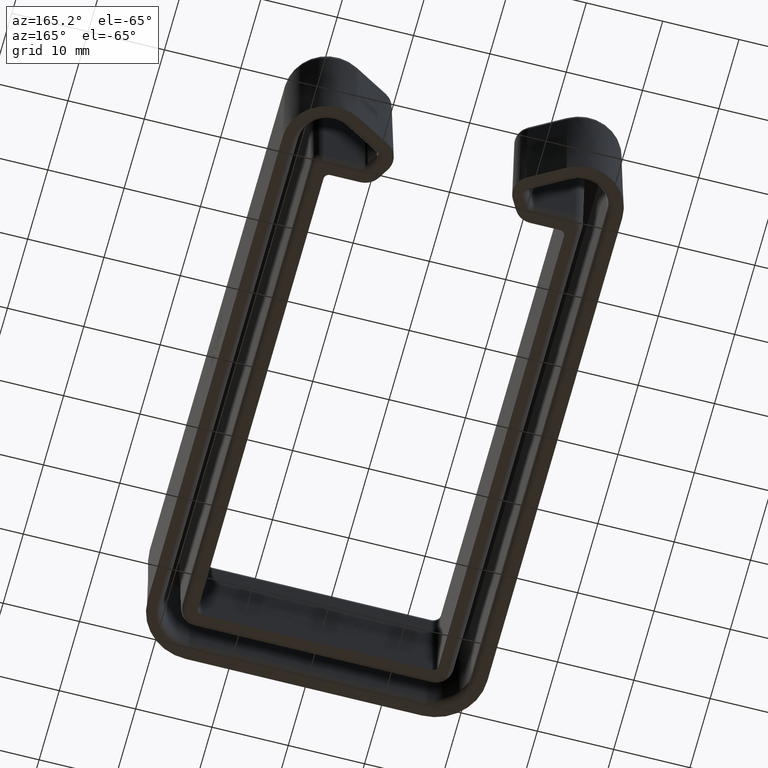
[diagram: clean part render]
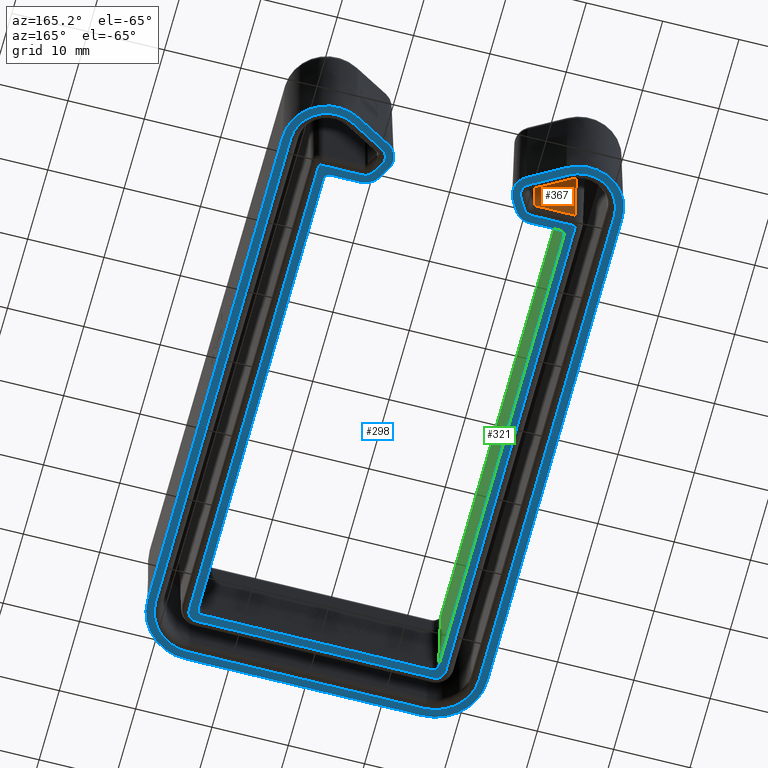
[diagram: same view with three faces highlighted in distinct colors, each labeled with its STEP entity id]
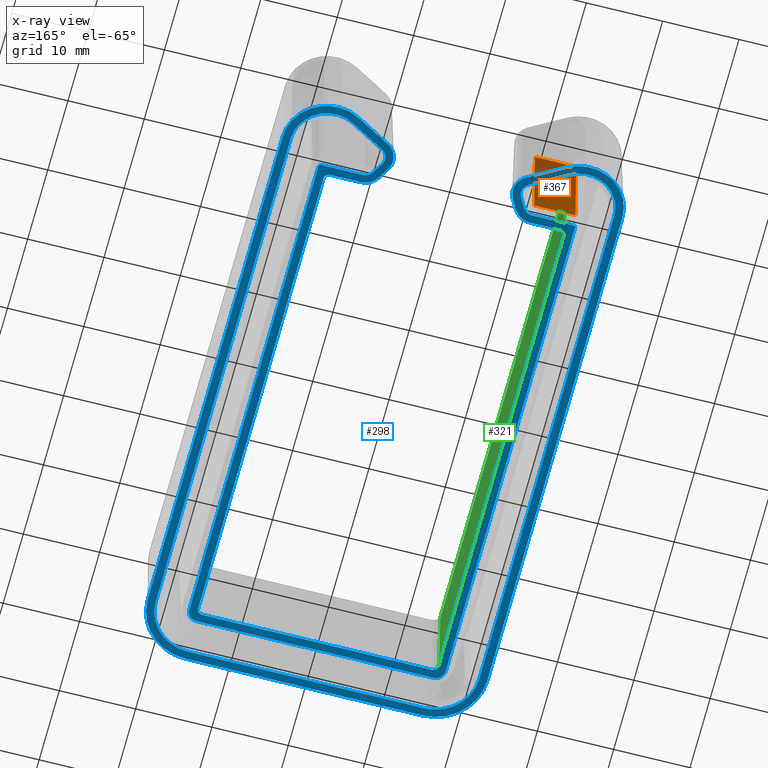
[diagram: x-ray of the same camera — body ghosted, the three highlighted faces saturated]
A machine part, auxiliary view with three faces highlighted in distinct colors.
The next image is the same camera in x-ray (body ghosted, the three faces saturated) — at least one of them is partly hidden behind the body in this view.
Their STEP definitions:

[orange] entity #367 — the highlighted planar face has unit normal (0, 0.9998, -0.0175).
#367=ADVANCED_FACE('',(#804),#805,.T.);
#804=FACE_OUTER_BOUND('',#1325,.T.);
#805=PLANE('',#1326);
#1325=EDGE_LOOP('',(#3355,#3356,#3357,#3358));
#1326=AXIS2_PLACEMENT_3D('',#3359,#3360,#3361);
#3355=ORIENTED_EDGE('',*,*,#4083,.F.);
#3356=ORIENTED_EDGE('',*,*,#3904,.T.);
#3357=ORIENTED_EDGE('',*,*,#4081,.T.);
#3358=ORIENTED_EDGE('',*,*,#4084,.T.);
#3359=CARTESIAN_POINT('',(15.4999999999977,70.1249255972025,15.0));
#3360=DIRECTION('',(0.0,0.999847695156391,-0.0174524064372836));
#3361=DIRECTION('',(0.0,0.0174524064372835,0.999847695156391));
#3904=EDGE_CURVE('',#4698,#4696,#4699,.F.);
#4081=EDGE_CURVE('',#4696,#4978,#4979,.T.);
#4083=EDGE_CURVE('',#4698,#4981,#4982,.T.);
#4084=EDGE_CURVE('',#4978,#4981,#4983,.F.);
#4696=VERTEX_POINT('',#6760);
#4698=VERTEX_POINT('',#6762);
#4699=LINE('',#6763,#6764);
#4978=VERTEX_POINT('',#7129);
#4979=LINE('',#7130,#7131);
#4981=VERTEX_POINT('',#7133);
#4982=LINE('',#7134,#7135);
#4983=LINE('',#7136,#7137);
#6760=CARTESIAN_POINT('',(-16.5500000000133,69.8802500553199,0.982547593562663));
#6762=CARTESIAN_POINT('',(-11.13377132404,69.8802500553199,0.982547593562717));
#6763=CARTESIAN_POINT('',(-16.5500000000133,69.8802500553199,0.982547593562716));
#6764=VECTOR('',#7502,1000.0);
#7129=CARTESIAN_POINT('',(-16.5500000000133,70.1249255972025,15.0));
#7130=CARTESIAN_POINT('',(-16.5500000000133,70.1249255972025,15.0));
#7131=VECTOR('',#7859,1000.0);
#7133=CARTESIAN_POINT('',(-11.13377132404,70.1249255972025,15.0));
#7134=CARTESIAN_POINT('',(-11.13377132404,70.1249255972025,15.0));
#7135=VECTOR('',#7863,1000.0);
#7136=CARTESIAN_POINT('',(15.4999999999977,70.1249255972025,15.0));
#7137=VECTOR('',#7864,1000.0);
#7502=DIRECTION('',(1.0,0.0,0.0));
#7859=DIRECTION('',(-8.07335977574516E-17,0.0174524064372835,0.999847695156391));
#7863=DIRECTION('',(0.0,0.0174524064372835,0.999847695156391));
#7864=DIRECTION('',(-1.0,0.0,0.0));

[blue] entity #298 — the highlighted planar face has unit normal (0, 0, -1).
#298=ADVANCED_FACE('',(#665,#666),#667,.T.);
#665=FACE_BOUND('',#1186,.T.);
#666=FACE_OUTER_BOUND('',#1187,.T.);
#667=PLANE('',#1188);
#1186=EDGE_LOOP('',(#2802,#2803,#2804,#2805,#2806,#2807,#2808,#2809,#2810,#2811,#2812,#2813,#2814,#2815,#2816,#2817,#2818,#2819,#2820,#2821,#2822,#2823,#2824,#2825,#2826,#2827));
#1187=EDGE_LOOP('',(#2828,#2829,#2830,#2831,#2832,#2833,#2834,#2835,#2836,#2837,#2838,#2839,#2840,#2841,#2842,#2843,#2844,#2845,#2846,#2847,#2848,#2849,#2850,#2851,#2852,#2853));
#1188=AXIS2_PLACEMENT_3D('',#2854,#2855,#2856);
#2802=ORIENTED_EDGE('',*,*,#3910,.T.);
#2803=ORIENTED_EDGE('',*,*,#3911,.T.);
#2804=ORIENTED_EDGE('',*,*,#3912,.T.);
#2805=ORIENTED_EDGE('',*,*,#3913,.T.);
#2806=ORIENTED_EDGE('',*,*,#3914,.T.);
#2807=ORIENTED_EDGE('',*,*,#3915,.T.);
#2808=ORIENTED_EDGE('',*,*,#3916,.T.);
#2809=ORIENTED_EDGE('',*,*,#3876,.T.);
#2810=ORIENTED_EDGE('',*,*,#3917,.T.);
#2811=ORIENTED_EDGE('',*,*,#3918,.T.);
#2812=ORIENTED_EDGE('',*,*,#3900,.T.);
#2813=ORIENTED_EDGE('',*,*,#3919,.T.);
#2814=ORIENTED_EDGE('',*,*,#3920,.T.);
#2815=ORIENTED_EDGE('',*,*,#3921,.T.);
#2816=ORIENTED_EDGE('',*,*,#3922,.T.);
#2817=ORIENTED_EDGE('',*,*,#3923,.T.);
#2818=ORIENTED_EDGE('',*,*,#3924,.T.);
#2819=ORIENTED_EDGE('',*,*,#3925,.T.);
#2820=ORIENTED_EDGE('',*,*,#3909,.T.);
#2821=ORIENTED_EDGE('',*,*,#3906,.T.);
#2822=ORIENTED_EDGE('',*,*,#3926,.T.);
#2823=ORIENTED_EDGE('',*,*,#3927,.T.);
#2824=ORIENTED_EDGE('',*,*,#3928,.T.);
#2825=ORIENTED_EDGE('',*,*,#3882,.T.);
#2826=ORIENTED_EDGE('',*,*,#3929,.T.);
#2827=ORIENTED_EDGE('',*,*,#3930,.T.);
#2828=ORIENTED_EDGE('',*,*,#3931,.F.);
#2829=ORIENTED_EDGE('',*,*,#3932,.F.);
#2830=ORIENTED_EDGE('',*,*,#3933,.F.);
#2831=ORIENTED_EDGE('',*,*,#3934,.F.);
#2832=ORIENTED_EDGE('',*,*,#3935,.F.);
#2833=ORIENTED_EDGE('',*,*,#3936,.F.);
#2834=ORIENTED_EDGE('',*,*,#3896,.F.);
#2835=ORIENTED_EDGE('',*,*,#3937,.F.);
#2836=ORIENTED_EDGE('',*,*,#3938,.F.);
#2837=ORIENTED_EDGE('',*,*,#3939,.F.);
#2838=ORIENTED_EDGE('',*,*,#3940,.F.);
#2839=ORIENTED_EDGE('',*,*,#3941,.F.);
#2840=ORIENTED_EDGE('',*,*,#3942,.F.);
#2841=ORIENTED_EDGE('',*,*,#3943,.F.);
#2842=ORIENTED_EDGE('',*,*,#3944,.F.);
#2843=ORIENTED_EDGE('',*,*,#3945,.F.);
#2844=ORIENTED_EDGE('',*,*,#3946,.F.);
#2845=ORIENTED_EDGE('',*,*,#3947,.F.);
#2846=ORIENTED_EDGE('',*,*,#3894,.F.);
#2847=ORIENTED_EDGE('',*,*,#3948,.F.);
#2848=ORIENTED_EDGE('',*,*,#3949,.F.);
#2849=ORIENTED_EDGE('',*,*,#3950,.F.);
#2850=ORIENTED_EDGE('',*,*,#3951,.F.);
#2851=ORIENTED_EDGE('',*,*,#3952,.F.);
#2852=ORIENTED_EDGE('',*,*,#3953,.F.);
#2853=ORIENTED_EDGE('',*,*,#3954,.F.);
#2854=CARTESIAN_POINT('',(15.049999999996,4.95000000001253,0.0));
#2855=DIRECTION('',(0.0,0.0,-1.0));
#2856=DIRECTION('',(8.32667268468864E-13,-1.0,0.0));
#3876=EDGE_CURVE('',#4645,#4643,#4646,.F.);
#3882=EDGE_CURVE('',#4650,#4654,#4656,.F.);
#3894=EDGE_CURVE('',#4677,#4673,#4679,.F.);
#3896=EDGE_CURVE('',#4680,#4682,#4683,.F.);
#3900=EDGE_CURVE('',#4690,#4688,#4691,.F.);
#3906=EDGE_CURVE('',#4695,#4700,#4702,.F.);
#3909=EDGE_CURVE('',#4703,#4695,#4707,.T.);
#3910=EDGE_CURVE('',#4708,#4709,#4710,.F.);
#3911=EDGE_CURVE('',#4709,#4711,#4712,.F.);
#3912=EDGE_CURVE('',#4711,#4713,#4714,.F.);
#3913=EDGE_CURVE('',#4713,#4715,#4716,.F.);
#3914=EDGE_CURVE('',#4715,#4717,#4718,.F.);
#3915=EDGE_CURVE('',#4717,#4719,#4720,.F.);
#3916=EDGE_CURVE('',#4719,#4645,#4721,.F.);
#3917=EDGE_CURVE('',#4643,#4722,#4723,.F.);
#3918=EDGE_CURVE('',#4722,#4690,#4724,.F.);
#3919=EDGE_CURVE('',#4688,#4725,#4726,.F.);
#3920=EDGE_CURVE('',#4725,#4727,#4728,.T.);
#3921=EDGE_CURVE('',#4727,#4729,#4730,.F.);
#3922=EDGE_CURVE('',#4729,#4731,#4732,.T.);
#3923=EDGE_CURVE('',#4731,#4733,#4734,.F.);
#3924=EDGE_CURVE('',#4733,#4735,#4736,.T.);
#3925=EDGE_CURVE('',#4735,#4703,#4737,.F.);
#3926=EDGE_CURVE('',#4700,#4738,#4739,.F.);
#3927=EDGE_CURVE('',#4738,#4740,#4741,.F.);
#3928=EDGE_CURVE('',#4740,#4650,#4742,.F.);
#3929=EDGE_CURVE('',#4654,#4743,#4744,.F.);
#3930=EDGE_CURVE('',#4743,#4708,#4745,.F.);
#3931=EDGE_CURVE('',#4746,#4747,#4748,.T.);
#3932=EDGE_CURVE('',#4749,#4746,#4750,.F.);
#3933=EDGE_CURVE('',#4751,#4749,#4752,.T.);
#3934=EDGE_CURVE('',#4753,#4751,#4754,.F.);
#3935=EDGE_CURVE('',#4755,#4753,#4756,.F.);
#3936=EDGE_CURVE('',#4682,#4755,#4757,.F.);
#3937=EDGE_CURVE('',#4758,#4680,#4759,.F.);
#3938=EDGE_CURVE('',#4760,#4758,#4761,.F.);
#3939=EDGE_CURVE('',#4762,#4760,#4763,.F.);
#3940=EDGE_CURVE('',#4764,#4762,#4765,.F.);
#3941=EDGE_CURVE('',#4766,#4764,#4767,.F.);
#3942=EDGE_CURVE('',#4768,#4766,#4769,.F.);
#3943=EDGE_CURVE('',#4770,#4768,#4771,.F.);
#3944=EDGE_CURVE('',#4772,#4770,#4773,.F.);
#3945=EDGE_CURVE('',#4774,#4772,#4775,.F.);
#3946=EDGE_CURVE('',#4776,#4774,#4777,.F.);
#3947=EDGE_CURVE('',#4673,#4776,#4778,.F.);
#3948=EDGE_CURVE('',#4779,#4677,#4780,.F.);
#3949=EDGE_CURVE('',#4781,#4779,#4782,.F.);
#3950=EDGE_CURVE('',#4783,#4781,#4784,.F.);
#3951=EDGE_CURVE('',#4785,#4783,#4786,.T.);
#3952=EDGE_CURVE('',#4787,#4785,#4788,.F.);
#3953=EDGE_CURVE('',#4789,#4787,#4790,.T.);
#3954=EDGE_CURVE('',#4747,#4789,#4791,.F.);
#4643=VERTEX_POINT('',#6703);
#4645=VERTEX_POINT('',#6705);
#4646=CIRCLE('',#6706,1.44452323703896);
#4650=VERTEX_POINT('',#6710);
#4654=VERTEX_POINT('',#6714);
#4656=CIRCLE('',#6716,1.44452323703895);
#4673=VERTEX_POINT('',#6733);
#4677=VERTEX_POINT('',#6738);
#4679=CIRCLE('',#6741,2.49673610377969);
#4680=VERTEX_POINT('',#6742);
#4682=VERTEX_POINT('',#6745);
#4683=CIRCLE('',#6746,2.49673610377951);
#4688=VERTEX_POINT('',#6752);
#4690=VERTEX_POINT('',#6754);
#4691=CIRCLE('',#6755,1.44452323703895);
#4695=VERTEX_POINT('',#6759);
#4700=VERTEX_POINT('',#6765);
#4702=LINE('',#6767,#6768);
#4703=VERTEX_POINT('',#6769);
#4707=CIRCLE('',#6773,0.255476762961047);
#4708=VERTEX_POINT('',#6774);
#4709=VERTEX_POINT('',#6775);
#4710=LINE('',#6776,#6777);
#4711=VERTEX_POINT('',#6778);
#4712=CIRCLE('',#6779,5.69452323703779);
#4713=VERTEX_POINT('',#6780);
#4714=LINE('',#6781,#6782);
#4715=VERTEX_POINT('',#6783);
#4716=CIRCLE('',#6784,5.69452323703678);
#4717=VERTEX_POINT('',#6785);
#4718=LINE('',#6786,#6787);
#4719=VERTEX_POINT('',#6788);
#4720=CIRCLE('',#6789,4.6945232370389);
#4721=LINE('',#6790,#6791);
#4722=VERTEX_POINT('',#6792);
#4723=CIRCLE('',#6793,1.44452323703896);
#4724=LINE('',#6794,#6795);
#4725=VERTEX_POINT('',#6796);
#4726=LINE('',#6797,#6798);
#4727=VERTEX_POINT('',#6799);
#4728=CIRCLE('',#6800,0.255476762961047);
#4729=VERTEX_POINT('',#6801);
#4730=LINE('',#6802,#6803);
#4731=VERTEX_POINT('',#6804);
#4732=CIRCLE('',#6805,1.30547676296179);
#4733=VERTEX_POINT('',#6806);
#4734=LINE('',#6807,#6808);
#4735=VERTEX_POINT('',#6809);
#4736=CIRCLE('',#6810,1.30547676296213);
#4737=LINE('',#6811,#6812);
#4738=VERTEX_POINT('',#6813);
#4739=CIRCLE('',#6814,1.44452323703896);
#4740=VERTEX_POINT('',#6815);
#4741=LINE('',#6816,#6817);
#4742=CIRCLE('',#6818,1.44452323703895);
#4743=VERTEX_POINT('',#6819);
#4744=LINE('',#6820,#6821);
#4745=CIRCLE('',#6822,4.69452323703907);
#4746=VERTEX_POINT('',#6823);
#4747=VERTEX_POINT('',#6824);
#4748=CIRCLE('',#6825,0.703263896220302);
#4749=VERTEX_POINT('',#6826);
#4750=LINE('',#6827,#6828);
#4751=VERTEX_POINT('',#6829);
#4752=CIRCLE('',#6830,0.703263896220302);
#4753=VERTEX_POINT('',#6831);
#4754=LINE('',#6832,#6833);
#4755=VERTEX_POINT('',#6834);
#4756=CIRCLE('',#6835,2.49673610377975);
#4757=LINE('',#6836,#6837);
#4758=VERTEX_POINT('',#6838);
#4759=CIRCLE('',#6839,2.49673610377951);
#4760=VERTEX_POINT('',#6840);
#4761=LINE('',#6841,#6842);
#4762=VERTEX_POINT('',#6843);
#4763=CIRCLE('',#6844,5.74673610377893);
#4764=VERTEX_POINT('',#6845);
#4765=LINE('',#6846,#6847);
#4766=VERTEX_POINT('',#6848);
#4767=CIRCLE('',#6849,6.74673610378365);
#4768=VERTEX_POINT('',#6850);
#4769=LINE('',#6851,#6852);
#4770=VERTEX_POINT('',#6853);
#4771=CIRCLE('',#6854,6.74673610378238);
#4772=VERTEX_POINT('',#6855);
#4773=LINE('',#6856,#6857);
#4774=VERTEX_POINT('',#6858);
#4775=CIRCLE('',#6859,5.74673610378009);
#4776=VERTEX_POINT('',#6860);
#4777=LINE('',#6861,#6862);
#4778=CIRCLE('',#6863,2.49673610377969);
#4779=VERTEX_POINT('',#6864);
#4780=LINE('',#6865,#6866);
#4781=VERTEX_POINT('',#6867);
#4782=CIRCLE('',#6868,2.49673610377983);
#4783=VERTEX_POINT('',#6869);
#4784=LINE('',#6870,#6871);
#4785=VERTEX_POINT('',#6872);
#4786=CIRCLE('',#6873,0.703263896220302);
#4787=VERTEX_POINT('',#6874);
#4788=LINE('',#6875,#6876);
#4789=VERTEX_POINT('',#6877);
#4790=CIRCLE('',#6878,0.703263896220301);
#4791=LINE('',#6879,#6880);
#6703=CARTESIAN_POINT('',(8.89698311389346,71.697168783658,0.0));
#6705=CARTESIAN_POINT('',(9.61924473241147,72.9481626032898,0.0));
#6706=AXIS2_PLACEMENT_3D('',#7426,#7427,#7428);
#6710=CARTESIAN_POINT('',(-8.89698311392089,71.6971687836364,0.0));
#6714=CARTESIAN_POINT('',(-9.6192447324412,72.9481626032696,0.0));
#6716=AXIS2_PLACEMENT_3D('',#7444,#7445,#7446);
#6733=CARTESIAN_POINT('',(-7.84477024718014,71.6971687836365,0.0));
#6738=CARTESIAN_POINT('',(-8.1792694585401,70.4488007317479,0.0));
#6741=AXIS2_PLACEMENT_3D('',#7476,#7477,#7478);
#6742=CARTESIAN_POINT('',(7.84477024715291,71.697168783658,0.0));
#6745=CARTESIAN_POINT('',(8.17926945851487,70.448800731766,0.0));
#6746=AXIS2_PLACEMENT_3D('',#7480,#7481,#7482);
#6752=CARTESIAN_POINT('',(11.133771324028,68.8804023601635,0.0));
#6754=CARTESIAN_POINT('',(9.88277750439602,69.6026639786818,0.0));
#6755=AXIS2_PLACEMENT_3D('',#7490,#7491,#7492);
#6759=CARTESIAN_POINT('',(-16.5500000000133,68.8804023601635,0.0));
#6765=CARTESIAN_POINT('',(-11.13377132404,68.8804023601635,0.0));
#6767=CARTESIAN_POINT('',(-11.13377132404,68.8804023601635,0.0));
#6768=VECTOR('',#7506,1000.0);
#6769=CARTESIAN_POINT('',(-16.8054767629744,68.6249255972024,0.0));
#6773=AXIS2_PLACEMENT_3D('',#7513,#7514,#7515);
#6774=CARTESIAN_POINT('',(-21.1945232370525,71.4999999999826,0.0));
#6775=CARTESIAN_POINT('',(-21.1945232370432,4.49999999998529,0.0));
#6776=CARTESIAN_POINT('',(-21.1945232370432,4.49999999998529,0.0));
#6777=VECTOR('',#7516,1000.0);
#6778=CARTESIAN_POINT('',(-15.4999999999994,-1.19452323705186,0.0));
#6779=AXIS2_PLACEMENT_3D('',#7517,#7518,#7519);
#6780=CARTESIAN_POINT('',(15.5000000000027,-1.19452323702605,0.0));
#6781=CARTESIAN_POINT('',(15.5000000000027,-1.19452323702605,0.0));
#6782=VECTOR('',#7520,1000.0);
#6783=CARTESIAN_POINT('',(21.1945232370348,4.50000000001365,0.0));
#6784=AXIS2_PLACEMENT_3D('',#7521,#7522,#7523);
#6785=CARTESIAN_POINT('',(21.1945232370255,71.5000000000178,0.0));
#6786=CARTESIAN_POINT('',(21.1945232370255,71.5000000000178,0.0));
#6787=VECTOR('',#7524,1000.0);
#6788=CARTESIAN_POINT('',(14.1527383814625,75.5655763819464,0.0));
#6789=AXIS2_PLACEMENT_3D('',#7525,#7526,#7527);
#6790=CARTESIAN_POINT('',(9.61924473241148,72.9481626032898,0.0));
#6791=VECTOR('',#7528,1000.0);
#6792=CARTESIAN_POINT('',(9.09051253130051,70.9749071651372,0.0));
#6793=AXIS2_PLACEMENT_3D('',#7529,#7530,#7531);
#6794=CARTESIAN_POINT('',(9.88277750439606,69.6026639786817,0.0));
#6795=VECTOR('',#7532,1000.0);
#6796=CARTESIAN_POINT('',(16.5499999999876,68.8804023601635,0.0));
#6797=CARTESIAN_POINT('',(16.5499999999876,68.8804023601635,0.0));
#6798=VECTOR('',#7533,1000.0);
#6799=CARTESIAN_POINT('',(16.8054767629486,68.6249255972025,0.0));
#6800=AXIS2_PLACEMENT_3D('',#7534,#7535,#7536);
#6801=CARTESIAN_POINT('',(16.8054767629571,4.50000000001383,0.0));
#6802=CARTESIAN_POINT('',(16.8054767629571,4.50000000001382,0.0));
#6803=VECTOR('',#7537,1000.0);
#6804=CARTESIAN_POINT('',(15.4999999999967,3.19452323705187,0.0));
#6805=AXIS2_PLACEMENT_3D('',#7538,#7539,#7540);
#6806=CARTESIAN_POINT('',(-15.5000000000018,3.19452323702605,0.0));
#6807=CARTESIAN_POINT('',(-15.5000000000018,3.19452323702605,0.0));
#6808=VECTOR('',#7541,1000.0);
#6809=CARTESIAN_POINT('',(-16.805476762965,4.4999999999869,0.0));
#6810=AXIS2_PLACEMENT_3D('',#7542,#7543,#7544);
#6811=CARTESIAN_POINT('',(-16.8054767629744,68.6249255972024,0.0));
#6812=VECTOR('',#7545,1000.0);
#6813=CARTESIAN_POINT('',(-9.88277750440695,69.6026639786837,0.0));
#6814=AXIS2_PLACEMENT_3D('',#7546,#7547,#7548);
#6815=CARTESIAN_POINT('',(-9.09051253132671,70.9749071651177,0.0));
#6816=CARTESIAN_POINT('',(-9.09051253132673,70.9749071651177,0.0));
#6817=VECTOR('',#7549,1000.0);
#6818=AXIS2_PLACEMENT_3D('',#7550,#7551,#7552);
#6819=CARTESIAN_POINT('',(-14.1527383814966,75.5655763819171,0.0));
#6820=CARTESIAN_POINT('',(-14.1527383814966,75.5655763819171,0.0));
#6821=VECTOR('',#7553,1000.0);
#6822=AXIS2_PLACEMENT_3D('',#7554,#7555,#7556);
#6823=CARTESIAN_POINT('',(15.7532638962163,4.95000000001262,0.0));
#6824=CARTESIAN_POINT('',(15.0499999999966,4.24673610379222,0.0));
#6825=AXIS2_PLACEMENT_3D('',#7557,#7558,#7559);
#6826=CARTESIAN_POINT('',(15.753263896208,67.1249255972026,0.0));
#6827=CARTESIAN_POINT('',(15.7532638962164,3.95000000001263,0.0));
#6828=VECTOR('',#7560,1000.0);
#6829=CARTESIAN_POINT('',(15.0499999999877,67.8281894934228,0.0));
#6830=AXIS2_PLACEMENT_3D('',#7561,#7562,#7563);
#6831=CARTESIAN_POINT('',(11.133771324028,67.8281894934228,0.0));
#6832=CARTESIAN_POINT('',(15.0499999999968,67.8281894934228,0.0));
#6833=VECTOR('',#7564,1000.0);
#6834=CARTESIAN_POINT('',(8.97153443161027,69.0765575453105,0.0));
#6835=AXIS2_PLACEMENT_3D('',#7565,#7566,#7567);
#6836=CARTESIAN_POINT('',(38.6917774713742,17.5995865872658,0.0));
#6837=VECTOR('',#7568,1000.0);
#6838=CARTESIAN_POINT('',(9.09313829904002,73.8594056760756,0.0));
#6839=AXIS2_PLACEMENT_3D('',#7569,#7570,#7571);
#6840=CARTESIAN_POINT('',(13.6266319480914,76.4768194547315,0.0));
#6841=CARTESIAN_POINT('',(-16.710876064761,58.9614510369215,0.0));
#6842=VECTOR('',#7572,1000.0);
#6843=CARTESIAN_POINT('',(22.2467361037662,71.500000000018,0.0));
#6844=AXIS2_PLACEMENT_3D('',#7573,#7574,#7575);
#6845=CARTESIAN_POINT('',(22.2467361037816,4.5000000000138,0.0));
#6846=CARTESIAN_POINT('',(22.2467361037756,3.95000000001354,0.0));
#6847=VECTOR('',#7576,1000.0);
#6848=CARTESIAN_POINT('',(15.5000000000035,-2.24673610376679,0.0));
#6849=AXIS2_PLACEMENT_3D('',#7577,#7578,#7579);
#6850=CARTESIAN_POINT('',(-15.4999999999985,-2.24673610379629,0.0));
#6851=CARTESIAN_POINT('',(15.0500000000019,-2.24673610376716,0.0));
#6852=VECTOR('',#7580,1000.0);
#6853=CARTESIAN_POINT('',(-22.2467361037839,4.49999999998516,0.0));
#6854=AXIS2_PLACEMENT_3D('',#7581,#7582,#7583);
#6855=CARTESIAN_POINT('',(-22.2467361037935,71.4999999999825,0.0));
#6856=CARTESIAN_POINT('',(-22.2467361037839,3.95000000000734,0.0));
#6857=VECTOR('',#7584,1000.0);
#6858=CARTESIAN_POINT('',(-13.6266319481268,76.4768194547039,0.0));
#6859=AXIS2_PLACEMENT_3D('',#7585,#7586,#7587);
#6860=CARTESIAN_POINT('',(-9.09313829907143,73.8594056760563,0.0));
#6861=CARTESIAN_POINT('',(39.2858760646834,45.9277687100564,0.0));
#6862=VECTOR('',#7588,1000.0);
#6863=AXIS2_PLACEMENT_3D('',#7589,#7590,#7591);
#6864=CARTESIAN_POINT('',(-8.97153443162019,69.0765575453139,0.0));
#6865=CARTESIAN_POINT('',(-31.1667774713392,30.6332689141292,0.0));
#6866=VECTOR('',#7592,1000.0);
#6867=CARTESIAN_POINT('',(-11.13377132404,67.8281894934228,0.0));
#6868=AXIS2_PLACEMENT_3D('',#7593,#7594,#7595);
#6869=CARTESIAN_POINT('',(-15.0500000000131,67.8281894934228,0.0));
#6870=CARTESIAN_POINT('',(15.0499999999968,67.8281894934228,0.0));
#6871=VECTOR('',#7596,1000.0);
#6872=CARTESIAN_POINT('',(-15.7532638962335,67.1249255972024,0.0));
#6873=AXIS2_PLACEMENT_3D('',#7597,#7598,#7599);
#6874=CARTESIAN_POINT('',(-15.7532638962244,4.94999999998737,0.0));
#6875=CARTESIAN_POINT('',(-15.7532638962243,3.95000000000804,0.0));
#6876=VECTOR('',#7600,1000.0);
#6877=CARTESIAN_POINT('',(-15.0500000000035,4.24673610376717,0.0));
#6878=AXIS2_PLACEMENT_3D('',#7601,#7602,#7603);
#6879=CARTESIAN_POINT('',(15.0499999999966,4.24673610379223,0.0));
#6880=VECTOR('',#7604,1000.0);
#7426=CARTESIAN_POINT('',(10.3415063509324,71.697168783658,0.0));
#7427=DIRECTION('',(0.0,0.0,-1.0));
#7428=DIRECTION('',(-1.0,0.0,0.0));
#7444=CARTESIAN_POINT('',(-10.3415063509598,71.6971687836364,0.0));
#7445=DIRECTION('',(0.0,0.0,-1.0));
#7446=DIRECTION('',(-1.0,0.0,0.0));
#7476=CARTESIAN_POINT('',(-10.3415063509598,71.6971687836365,0.0));
#7477=DIRECTION('',(0.0,0.0,-1.0));
#7478=DIRECTION('',(-1.0,0.0,0.0));
#7480=CARTESIAN_POINT('',(10.3415063509324,71.697168783658,0.0));
#7481=DIRECTION('',(0.0,0.0,-1.0));
#7482=DIRECTION('',(-1.0,0.0,0.0));
#7490=CARTESIAN_POINT('',(11.133771324028,70.3249255972025,0.0));
#7491=DIRECTION('',(0.0,0.0,-1.0));
#7492=DIRECTION('',(-1.0,0.0,0.0));
#7506=DIRECTION('',(-1.0,0.0,0.0));
#7513=CARTESIAN_POINT('',(-16.5500000000133,68.6249255972025,0.0));
#7514=DIRECTION('',(0.0,0.0,-1.0));
#7515=DIRECTION('',(-1.0,0.0,0.0));
#7516=DIRECTION('',(-1.39192140400773E-13,1.0,0.0));
#7517=CARTESIAN_POINT('',(-15.5000000000041,4.4999999999861,0.0));
#7518=DIRECTION('',(0.0,0.0,-1.0));
#7519=DIRECTION('',(-1.0,0.0,0.0));
#7520=DIRECTION('',(-1.0,-8.32667268468864E-13,0.0));
#7521=CARTESIAN_POINT('',(15.499999999998,4.50000000001285,0.0));
#7522=DIRECTION('',(0.0,0.0,-1.0));
#7523=DIRECTION('',(-1.0,0.0,0.0));
#7524=DIRECTION('',(1.39192140400759E-13,-1.0,0.0));
#7525=CARTESIAN_POINT('',(16.4999999999868,71.5000000000171,0.0));
#7526=DIRECTION('',(0.0,0.0,-1.0));
#7527=DIRECTION('',(-1.0,0.0,0.0));
#7528=DIRECTION('',(0.866025403783849,0.500000000001021,0.0));
#7529=CARTESIAN_POINT('',(10.3415063509324,71.697168783658,0.0));
#7530=DIRECTION('',(0.0,0.0,-1.0));
#7531=DIRECTION('',(-1.0,0.0,0.0));
#7532=DIRECTION('',(-0.500000000000888,0.866025403783926,0.0));
#7533=DIRECTION('',(-1.0,0.0,0.0));
#7534=CARTESIAN_POINT('',(16.5499999999876,68.6249255972025,0.0));
#7535=DIRECTION('',(0.0,0.0,-1.0));
#7536=DIRECTION('',(-1.0,0.0,0.0));
#7537=DIRECTION('',(-1.32563943238818E-13,1.0,0.0));
#7538=CARTESIAN_POINT('',(15.4999999999957,4.50000000001366,0.0));
#7539=DIRECTION('',(0.0,0.0,-1.0));
#7540=DIRECTION('',(-1.0,0.0,0.0));
#7541=DIRECTION('',(1.0,8.32667268468864E-13,0.0));
#7542=CARTESIAN_POINT('',(-15.500000000003,4.49999999998709,0.0));
#7543=DIRECTION('',(0.0,0.0,-1.0));
#7544=DIRECTION('',(-1.0,0.0,0.0));
#7545=DIRECTION('',(1.45820337562714E-13,-1.0,0.0));
#7546=CARTESIAN_POINT('',(-11.13377132404,70.3249255972025,0.0));
#7547=DIRECTION('',(0.0,0.0,-1.0));
#7548=DIRECTION('',(-1.0,0.0,0.0));
#7549=DIRECTION('',(-0.499999999999492,-0.866025403784732,0.0));
#7550=CARTESIAN_POINT('',(-10.3415063509598,71.6971687836364,0.0));
#7551=DIRECTION('',(0.0,0.0,-1.0));
#7552=DIRECTION('',(-1.0,0.0,0.0));
#7553=DIRECTION('',(0.86602540378477,-0.499999999999426,0.0));
#7554=CARTESIAN_POINT('',(-16.5000000000135,71.4999999999833,0.0));
#7555=DIRECTION('',(0.0,0.0,-1.0));
#7556=DIRECTION('',(-1.0,0.0,0.0));
#7557=CARTESIAN_POINT('',(15.049999999996,4.95000000001253,0.0));
#7558=DIRECTION('',(0.0,0.0,-1.0));
#7559=DIRECTION('',(-1.0,0.0,0.0));
#7560=DIRECTION('',(-1.32563943238818E-13,1.0,0.0));
#7561=CARTESIAN_POINT('',(15.0499999999877,67.1249255972025,0.0));
#7562=DIRECTION('',(0.0,0.0,-1.0));
#7563=DIRECTION('',(-1.0,0.0,0.0));
#7564=DIRECTION('',(-1.0,1.00974195868289E-28,0.0));
#7565=CARTESIAN_POINT('',(11.133771324028,70.3249255972025,0.0));
#7566=DIRECTION('',(0.0,0.0,-1.0));
#7567=DIRECTION('',(-1.0,0.0,0.0));
#7568=DIRECTION('',(-0.500000000000887,0.866025403783927,0.0));
#7569=CARTESIAN_POINT('',(10.3415063509324,71.697168783658,0.0));
#7570=DIRECTION('',(0.0,0.0,-1.0));
#7571=DIRECTION('',(-1.0,0.0,0.0));
#7572=DIRECTION('',(0.866025403783849,0.500000000001021,0.0));
#7573=CARTESIAN_POINT('',(16.4999999999868,71.5000000000172,0.0));
#7574=DIRECTION('',(0.0,0.0,-1.0));
#7575=DIRECTION('',(-1.0,0.0,0.0));
#7576=DIRECTION('',(1.39192140400759E-13,-1.0,0.0));
#7577=CARTESIAN_POINT('',(15.499999999998,4.50000000001286,0.0));
#7578=DIRECTION('',(0.0,0.0,-1.0));
#7579=DIRECTION('',(-1.0,0.0,0.0));
#7580=DIRECTION('',(-1.0,-8.32667268468864E-13,0.0));
#7581=CARTESIAN_POINT('',(-15.5000000000041,4.4999999999861,0.0));
#7582=DIRECTION('',(0.0,0.0,-1.0));
#7583=DIRECTION('',(-1.0,0.0,0.0));
#7584=DIRECTION('',(-1.39192140400773E-13,1.0,0.0));
#7585=CARTESIAN_POINT('',(-16.5000000000135,71.4999999999833,0.0));
#7586=DIRECTION('',(0.0,0.0,-1.0));
#7587=DIRECTION('',(-1.0,0.0,0.0));
#7588=DIRECTION('',(0.86602540378477,-0.499999999999426,0.0));
#7589=CARTESIAN_POINT('',(-10.3415063509598,71.6971687836365,0.0));
#7590=DIRECTION('',(0.0,0.0,-1.0));
#7591=DIRECTION('',(-1.0,0.0,0.0));
#7592=DIRECTION('',(-0.499999999999492,-0.866025403784732,0.0));
#7593=CARTESIAN_POINT('',(-11.13377132404,70.3249255972025,0.0));
#7594=DIRECTION('',(0.0,0.0,-1.0));
#7595=DIRECTION('',(-1.0,0.0,0.0));
#7596=DIRECTION('',(-1.0,1.00974195868289E-28,0.0));
#7597=CARTESIAN_POINT('',(-15.0500000000131,67.1249255972025,0.0));
#7598=DIRECTION('',(0.0,0.0,-1.0));
#7599=DIRECTION('',(-1.0,0.0,0.0));
#7600=DIRECTION('',(1.45820337562714E-13,-1.0,0.0));
#7601=CARTESIAN_POINT('',(-15.0500000000041,4.94999999998747,0.0));
#7602=DIRECTION('',(0.0,0.0,-1.0));
#7603=DIRECTION('',(-1.0,0.0,0.0));
#7604=DIRECTION('',(1.0,8.32667268468864E-13,0.0));

[green] entity #321 — the highlighted planar face has unit normal (-0.9998, -0, -0.0175).
#321=ADVANCED_FACE('',(#712),#713,.F.);
#712=FACE_OUTER_BOUND('',#1233,.T.);
#713=PLANE('',#1234);
#1233=EDGE_LOOP('',(#3033,#3034,#3035,#3036));
#1234=AXIS2_PLACEMENT_3D('',#3037,#3038,#3039);
#3033=ORIENTED_EDGE('',*,*,#4017,.T.);
#3034=ORIENTED_EDGE('',*,*,#4018,.T.);
#3035=ORIENTED_EDGE('',*,*,#4019,.F.);
#3036=ORIENTED_EDGE('',*,*,#3952,.T.);
#3037=CARTESIAN_POINT('',(-16.050000000004,3.950000000008,17.0));
#3038=DIRECTION('',(-0.999847695156391,-1.45798128419007E-13,-0.0174524064372835));
#3039=DIRECTION('',(-0.0174524064372835,0.0,0.999847695156391));
#3952=EDGE_CURVE('',#4787,#4785,#4788,.F.);
#4017=EDGE_CURVE('',#4785,#4892,#4894,.T.);
#4018=EDGE_CURVE('',#4892,#4895,#4896,.F.);
#4019=EDGE_CURVE('',#4787,#4895,#4897,.T.);
#4785=VERTEX_POINT('',#6872);
#4787=VERTEX_POINT('',#6874);
#4788=LINE('',#6875,#6876);
#4892=VERTEX_POINT('',#7022);
#4894=LINE('',#7024,#7025);
#4895=VERTEX_POINT('',#7026);
#4896=LINE('',#7027,#7028);
#4897=LINE('',#7029,#7030);
#6872=CARTESIAN_POINT('',(-15.7532638962335,67.1249255972024,0.0));
#6874=CARTESIAN_POINT('',(-15.7532638962244,4.94999999998737,0.0));
#6875=CARTESIAN_POINT('',(-15.7532638962243,3.95000000000804,0.0));
#6876=VECTOR('',#7600,1000.0);
#7022=CARTESIAN_POINT('',(-16.0156991359318,67.1249255972024,15.0349048128745));
#7024=CARTESIAN_POINT('',(-16.0500000000131,67.1249255972024,17.0));
#7025=VECTOR('',#7709,1000.0);
#7026=CARTESIAN_POINT('',(-16.0156991359227,4.94999999998733,15.0349048128745));
#7027=CARTESIAN_POINT('',(-16.0156991359227,4.94999999998733,15.0349048128745));
#7028=VECTOR('',#7710,1000.0);
#7029=CARTESIAN_POINT('',(-16.0500000000041,4.94999999998732,17.0));
#7030=VECTOR('',#7711,1000.0);
#7600=DIRECTION('',(1.45820337562714E-13,-1.0,0.0));
#7709=DIRECTION('',(-0.0174524064372835,-2.54491579796637E-15,0.999847695156391));
#7710=DIRECTION('',(-1.45820337562714E-13,1.0,1.20101594819218E-34));
#7711=DIRECTION('',(-0.0174524064372835,-2.54310832935974E-15,0.999847695156391));